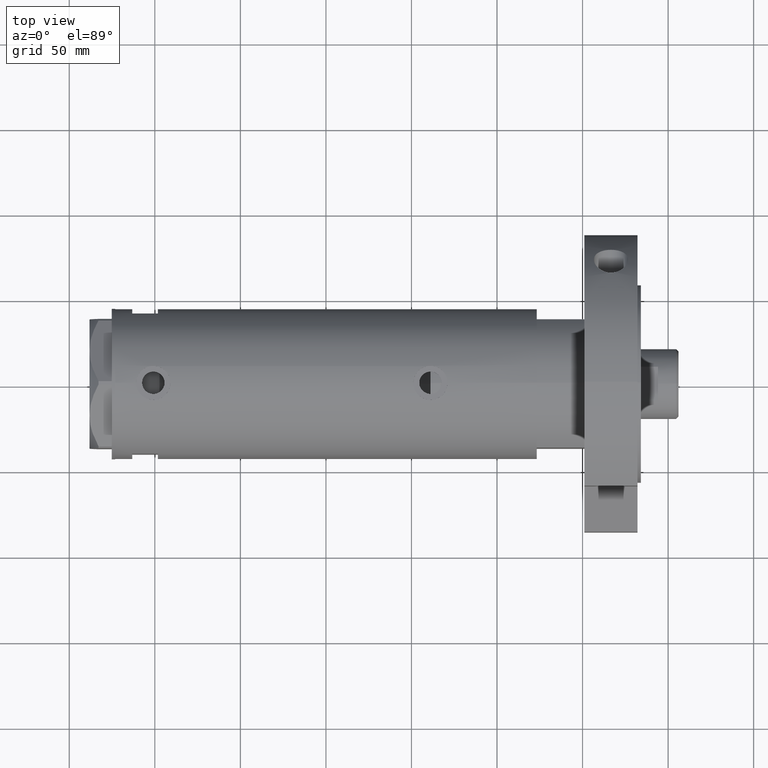
[diagram: clean part render]
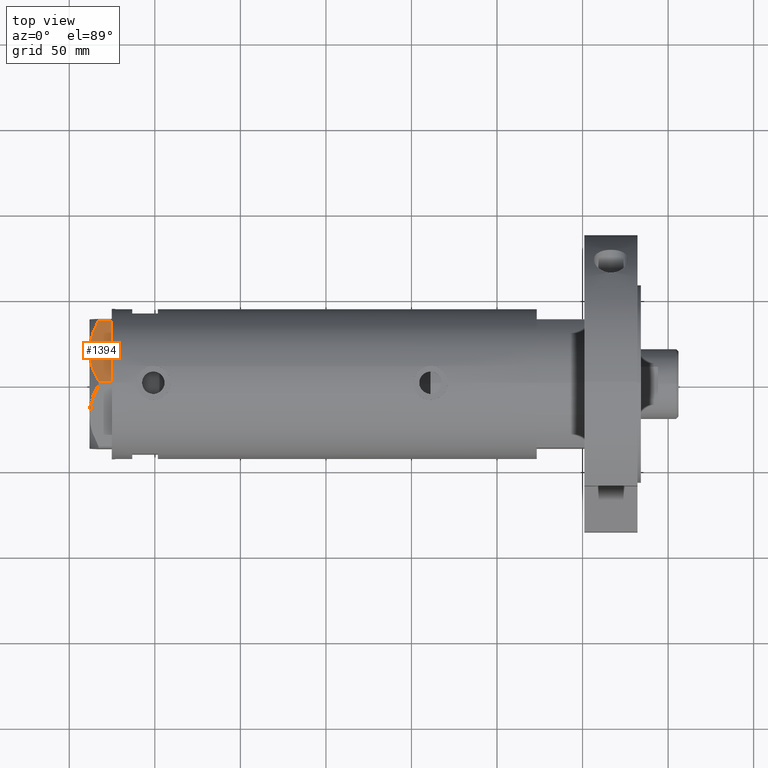
[diagram: same view with one face highlighted and labeled with its STEP entity id]
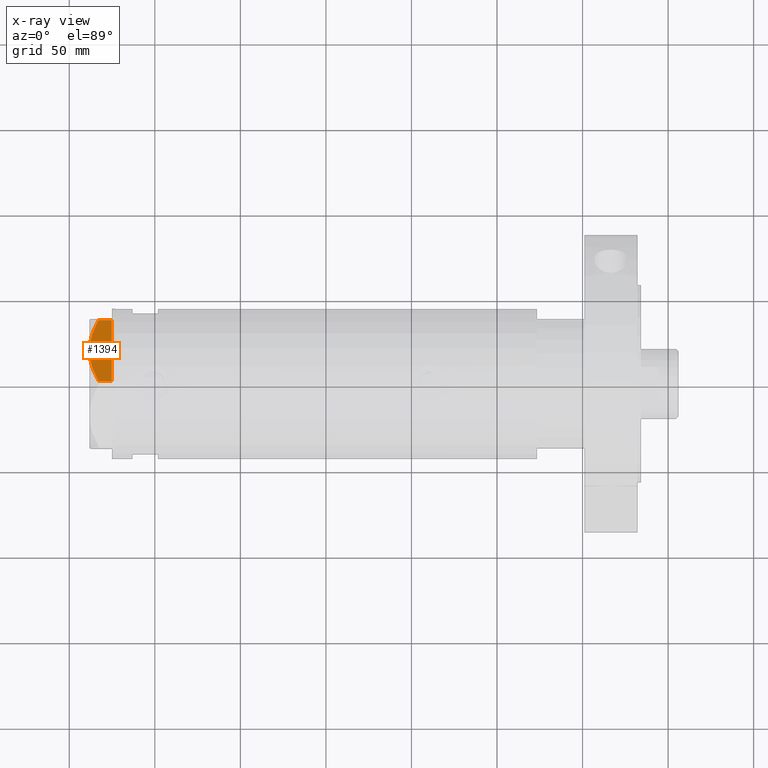
[diagram: x-ray of the same camera — body ghosted, the highlighted face saturated]
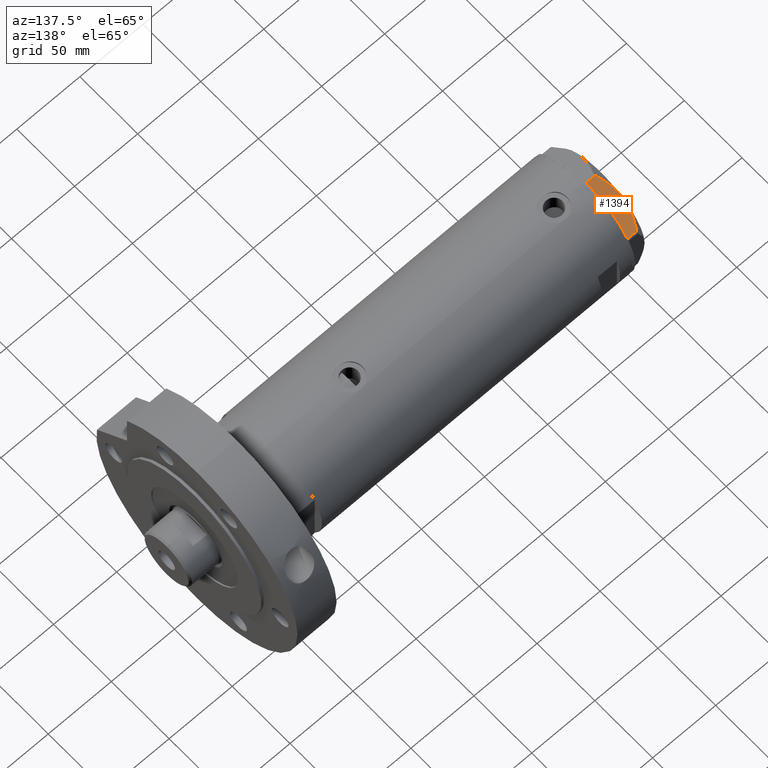
[diagram: same view with one face highlighted and labeled with its STEP entity id]
A machine part, top view. The second image highlights one B-rep face of the part: STEP entity #1394.
The next image is the same camera in x-ray: the body ghosted, the highlighted face saturated — about 0% of this face is hidden behind the body in this view.
A second angle (auxiliary view) of the same face is appended — the face is thin or edge-on in the first view.
In plain terms, the highlighted planar face has unit normal (-0, -0.5, -0.866).
Its self-contained STEP definition (entity closure, byte-faithful):
#50 = DIRECTION ( 'NONE',  ( -0.4999999999999997224, 0.8660254037844388186, 0.000000000000000000 ) ) ;
#260 = CARTESIAN_POINT ( 'NONE',  ( 36.78005154776143115, -22.35497266190837706, 0.000000000000000000 ) ) ;
#318 = AXIS2_PLACEMENT_3D ( 'NONE', #5857, #50, #5540 ) ;
#513 = CARTESIAN_POINT ( 'NONE',  ( 17.30879953081281641, -33.59670525535269547, 12.96759879420491401 ) ) ;
#531 = ORIENTED_EDGE ( 'NONE', *, *, #2313, .F. ) ;
#820 = EDGE_CURVE ( 'NONE', #5003, #3847, #3153, .T. ) ;
#868 = LINE ( 'NONE', #7341, #2639 ) ;
#869 = ORIENTED_EDGE ( 'NONE', *, *, #7469, .T. ) ;
#937 = VECTOR ( 'NONE', #4033, 1000.000000000000114 ) ;
#1100 = CARTESIAN_POINT ( 'NONE',  ( 3.783045159267917956, -41.40580318275688398, 9.269459228581803600 ) ) ;
#1155 = CARTESIAN_POINT ( 'NONE',  ( 36.78005154775924268, -22.35497266190964538, 7.709124142618180464 ) ) ;
#1202 = CARTESIAN_POINT ( 'NONE',  ( 31.03235934281740427, -25.67340430365192105, 10.48240969891324070 ) ) ;
#1230 = PLANE ( 'NONE',  #318 ) ;
#1240 = CARTESIAN_POINT ( 'NONE',  ( 26.54034249379520460, -28.26687144063922830, 12.01242981158384993 ) ) ;
#1291 = VERTEX_POINT ( 'NONE', #260 ) ;
#1394 = ADVANCED_FACE ( 'NONE', ( #7177 ), #1230, .F. ) ;
#1656 = CARTESIAN_POINT ( 'NONE',  ( 28.80058011347544422, -26.96192264248431769, 11.30742055474504859 ) ) ;
#1695 = CARTESIAN_POINT ( 'NONE',  ( 21.96683860604023764, -30.90738514137435544, 12.87183830165162846 ) ) ;
#1718 = CARTESIAN_POINT ( 'NONE',  ( 0.9699484522384296259, -43.02994532381681836, 7.709124142616899711 ) ) ;
#1734 = CARTESIAN_POINT ( 'NONE',  ( 29.55075297405426227, -26.52881013949038547, 11.04644118613091841 ) ) ;
#1740 = CARTESIAN_POINT ( 'NONE',  ( -4.107234936485837051E-15, -43.58994532381674247, 0.000000000000000000 ) ) ;
#1818 = VERTEX_POINT ( 'NONE', #1718 ) ;
#1882 = VERTEX_POINT ( 'NONE', #5847 ) ;
#1912 = EDGE_CURVE ( 'NONE', #1818, #1882, #868, .T. ) ;
#2152 = DIRECTION ( 'NONE',  ( 0.000000000000000000, 0.000000000000000000, -1.000000000000000000 ) ) ;
#2167 = ORIENTED_EDGE ( 'NONE', *, *, #3134, .T. ) ;
#2218 = CARTESIAN_POINT ( 'NONE',  ( 18.09346002772999995, -33.14368130623511632, 12.99999999999999822 ) ) ;
#2313 = EDGE_CURVE ( 'NONE', #1818, #5003, #5762, .T. ) ;
#2375 = CARTESIAN_POINT ( 'NONE',  ( 20.42709085942840730, -31.79635891736482023, 12.99999999999999645 ) ) ;
#2478 = ORIENTED_EDGE ( 'NONE', *, *, #1912, .T. ) ;
#2639 = VECTOR ( 'NONE', #2152, 1000.000000000000000 ) ;
#3134 = EDGE_CURVE ( 'NONE', #1882, #1291, #6926, .T. ) ;
#3153 = B_SPLINE_CURVE_WITH_KNOTS ( 'NONE', 3,
 ( #6843, #2375, #1695, #6397, #1240, #1656, #1734, #1202, #5706, #6358, #7459, #1155 ),
 .UNSPECIFIED., .F., .F.,
 ( 4, 2, 2, 2, 2, 4 ),
 ( 0.02259271946349904886, 0.02789559809390703207, 0.03319847672431501528, 0.03584991603951900863, 0.03850135535472300197, 0.04380423398513099559 ),
 .UNSPECIFIED. ) ;
#3485 = CARTESIAN_POINT ( 'NONE',  ( 18.87499999999998579, -32.69245899286256218, 13.00000000000000000 ) ) ;
#3508 = CARTESIAN_POINT ( 'NONE',  ( 36.78005154776145247, -22.35497266190836640, 13.00000000000000000 ) ) ;
#3775 = ORIENTED_EDGE ( 'NONE', *, *, #820, .F. ) ;
#3847 = VERTEX_POINT ( 'NONE', #6305 ) ;
#3869 = CARTESIAN_POINT ( 'NONE',  ( 18.87499999999998579, -32.69245899286256218, 13.00000000000000000 ) ) ;
#4033 = DIRECTION ( 'NONE',  ( 0.8660254037844388186, 0.4999999999999997224, 0.000000000000000000 ) ) ;
#4040 = EDGE_LOOP ( 'NONE', ( #531, #2478, #2167, #869, #3775 ) ) ;
#4517 = CARTESIAN_POINT ( 'NONE',  ( 14.95332775978646822, -34.95663751642331363, 12.73960743196719747 ) ) ;
#5003 = VERTEX_POINT ( 'NONE', #3485 ) ;
#5088 = LINE ( 'NONE', #3508, #6251 ) ;
#5094 = CARTESIAN_POINT ( 'NONE',  ( 11.12401302890051191, -37.16749340711212568, 11.98878493998158312 ) ) ;
#5127 = CARTESIAN_POINT ( 'NONE',  ( 6.659529780759589457, -39.74506401221886165, 10.58681170757598977 ) ) ;
#5540 = DIRECTION ( 'NONE',  ( -0.8660254037844388186, -0.4999999999999997224, 0.000000000000000000 ) ) ;
#5706 = CARTESIAN_POINT ( 'NONE',  ( 31.76569840794746824, -25.25001079699180551, 10.17879673963500942 ) ) ;
#5762 = B_SPLINE_CURVE_WITH_KNOTS ( 'NONE', 3,
 ( #6307, #1100, #5127, #5094, #6832, #4517, #7413, #513, #2218, #3869 ),
 .UNSPECIFIED., .F., .F.,
 ( 4, 2, 2, 2, 4 ),
 ( 0.001231023567492486306, 0.01191187151549576335, 0.01725229548949740177, 0.01992250747649822532, 0.02259271946349904886 ),
 .UNSPECIFIED. ) ;
#5847 = CARTESIAN_POINT ( 'NONE',  ( 0.9699484522385760643, -43.02994532381674020, 0.000000000000000000 ) ) ;
#5857 = CARTESIAN_POINT ( 'NONE',  ( -4.107234936485837051E-15, -43.58994532381674247, 13.00000000000000000 ) ) ;
#6251 = VECTOR ( 'NONE', #7407, 1000.000000000000000 ) ;
#6305 = CARTESIAN_POINT ( 'NONE',  ( 36.78005154775924268, -22.35497266190964538, 7.709124142618180464 ) ) ;
#6307 = CARTESIAN_POINT ( 'NONE',  ( 0.9699484522384296259, -43.02994532381681836, 7.709124142616899711 ) ) ;
#6358 = CARTESIAN_POINT ( 'NONE',  ( 33.94595399727396057, -23.99123964559198541, 9.210778219601310823 ) ) ;
#6397 = CARTESIAN_POINT ( 'NONE',  ( 25.02345495740816972, -29.14264686810265914, 12.37795492145971821 ) ) ;
#6832 = CARTESIAN_POINT ( 'NONE',  ( 12.63736081963744873, -36.29376165275263588, 12.35956205105863326 ) ) ;
#6843 = CARTESIAN_POINT ( 'NONE',  ( 18.87499999999998579, -32.69245899286256218, 13.00000000000000000 ) ) ;
#6926 = LINE ( 'NONE', #1740, #937 ) ;
#7177 = FACE_OUTER_BOUND ( 'NONE', #4040, .T. ) ;
#7341 = CARTESIAN_POINT ( 'NONE',  ( 0.9699484522385762864, -43.02994532381674020, 13.00000000000000000 ) ) ;
#7407 = DIRECTION ( 'NONE',  ( 0.000000000000000000, 0.000000000000000000, 1.000000000000000000 ) ) ;
#7413 = CARTESIAN_POINT ( 'NONE',  ( 15.73313492417777937, -34.50641564014599538, 12.83692902789789514 ) ) ;
#7459 = CARTESIAN_POINT ( 'NONE',  ( 35.37320095427428157, -23.16721823076776232, 8.489459328479206590 ) ) ;
#7469 = EDGE_CURVE ( 'NONE', #1291, #3847, #5088, .T. ) ;